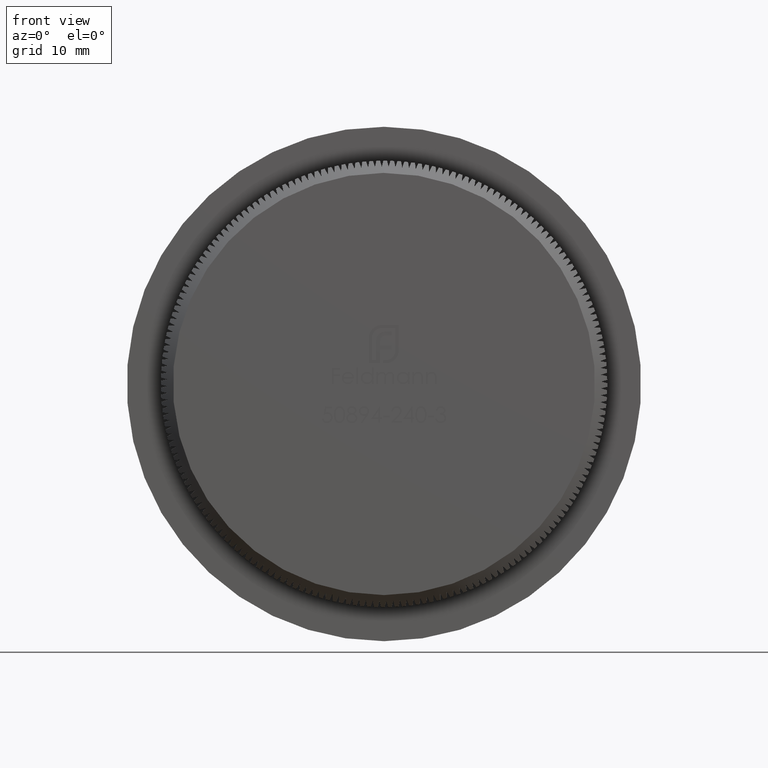
[diagram: clean part render]
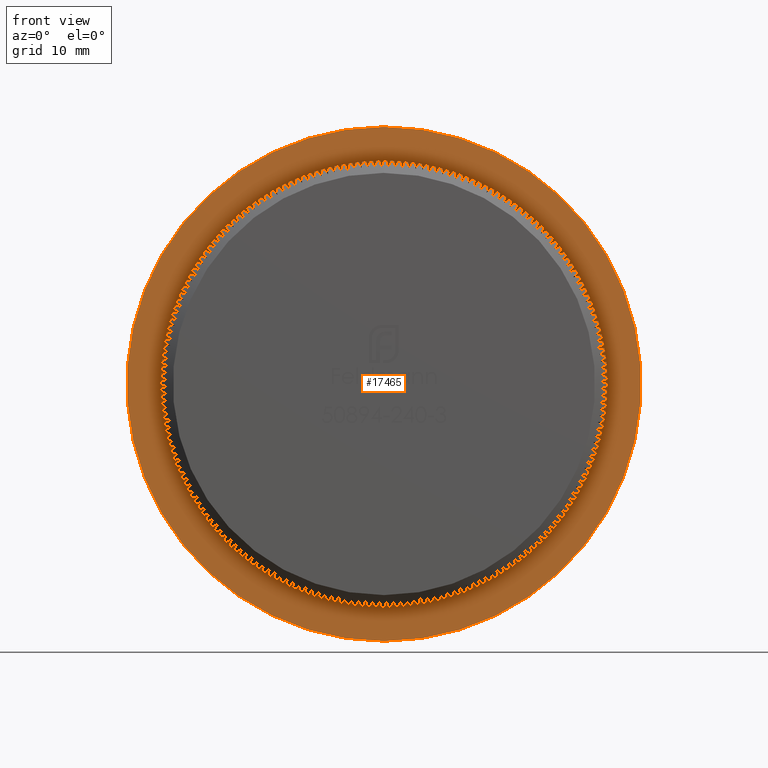
[diagram: same view with one face highlighted and labeled with its STEP entity id]
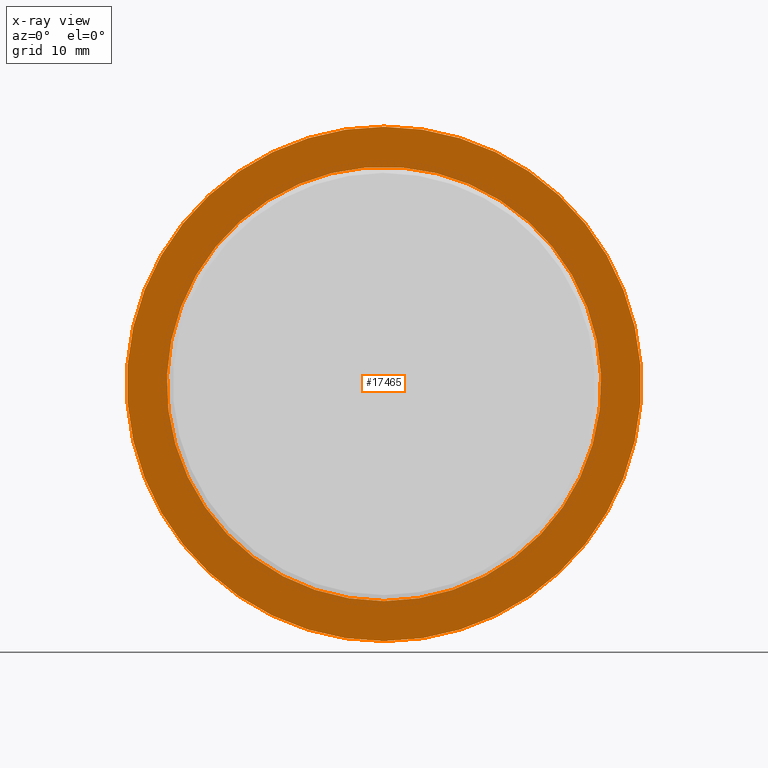
[diagram: x-ray of the same camera — body ghosted, the highlighted face saturated]
A machine part, front view. The second image highlights one B-rep face of the part: STEP entity #17465.
The next image is the same camera in x-ray: the body ghosted, the highlighted face saturated — about 0% of this face is hidden behind the body in this view.
In plain terms, the highlighted planar face has unit normal (0, -1, -0).
Its self-contained STEP definition (entity closure, byte-faithful):
#265 = VERTEX_POINT ( 'NONE', #39200 ) ;
#1540 = AXIS2_PLACEMENT_3D ( 'NONE', #17191, #20364, #11005 ) ;
#2036 = CARTESIAN_POINT ( 'NONE',  ( 0.000000000000000000, 5.000000000000000888, 0.000000000000000000 ) ) ;
#4572 = ORIENTED_EDGE ( 'NONE', *, *, #35355, .T. ) ;
#8650 = AXIS2_PLACEMENT_3D ( 'NONE', #2036, #14513, #36486 ) ;
#9087 = ORIENTED_EDGE ( 'NONE', *, *, #10617, .F. ) ;
#10617 = EDGE_CURVE ( 'NONE', #265, #265, #11874, .T. ) ;
#10749 = EDGE_LOOP ( 'NONE', ( #4572 ) ) ;
#11005 = DIRECTION ( 'NONE',  ( 0.000000000000000000, 0.000000000000000000, -1.000000000000000000 ) ) ;
#11874 = CIRCLE ( 'NONE', #8650, 17.89999999999999858 ) ;
#14045 = AXIS2_PLACEMENT_3D ( 'NONE', #14693, #23855, #27033 ) ;
#14513 = DIRECTION ( 'NONE',  ( -0.000000000000000000, -1.000000000000000000, -0.000000000000000000 ) ) ;
#14693 = CARTESIAN_POINT ( 'NONE',  ( 21.19999999999999929, 5.000000000000000888, 0.000000000000000000 ) ) ;
#17191 = CARTESIAN_POINT ( 'NONE',  ( 0.000000000000000000, 5.000000000000000888, 0.000000000000000000 ) ) ;
#17465 = ADVANCED_FACE ( 'NONE', ( #39051, #23791 ), #39529, .T. ) ;
#20364 = DIRECTION ( 'NONE',  ( -0.000000000000000000, -1.000000000000000000, -0.000000000000000000 ) ) ;
#23791 = FACE_OUTER_BOUND ( 'NONE', #10749, .T. ) ;
#23855 = DIRECTION ( 'NONE',  ( 0.000000000000000000, -1.000000000000000000, -0.000000000000000000 ) ) ;
#26698 = CARTESIAN_POINT ( 'NONE',  ( 0.000000000000000000, 5.000000000000000888, -21.19999999999999929 ) ) ;
#27033 = DIRECTION ( 'NONE',  ( 0.000000000000000000, 0.000000000000000000, -1.000000000000000000 ) ) ;
#28757 = VERTEX_POINT ( 'NONE', #26698 ) ;
#29063 = EDGE_LOOP ( 'NONE', ( #9087 ) ) ;
#31519 = CIRCLE ( 'NONE', #1540, 21.19999999999999929 ) ;
#35355 = EDGE_CURVE ( 'NONE', #28757, #28757, #31519, .T. ) ;
#36486 = DIRECTION ( 'NONE',  ( 0.000000000000000000, 0.000000000000000000, -1.000000000000000000 ) ) ;
#39051 = FACE_BOUND ( 'NONE', #29063, .T. ) ;
#39200 = CARTESIAN_POINT ( 'NONE',  ( 0.000000000000000000, 5.000000000000000888, -17.89999999999999858 ) ) ;
#39529 = PLANE ( 'NONE',  #14045 ) ;